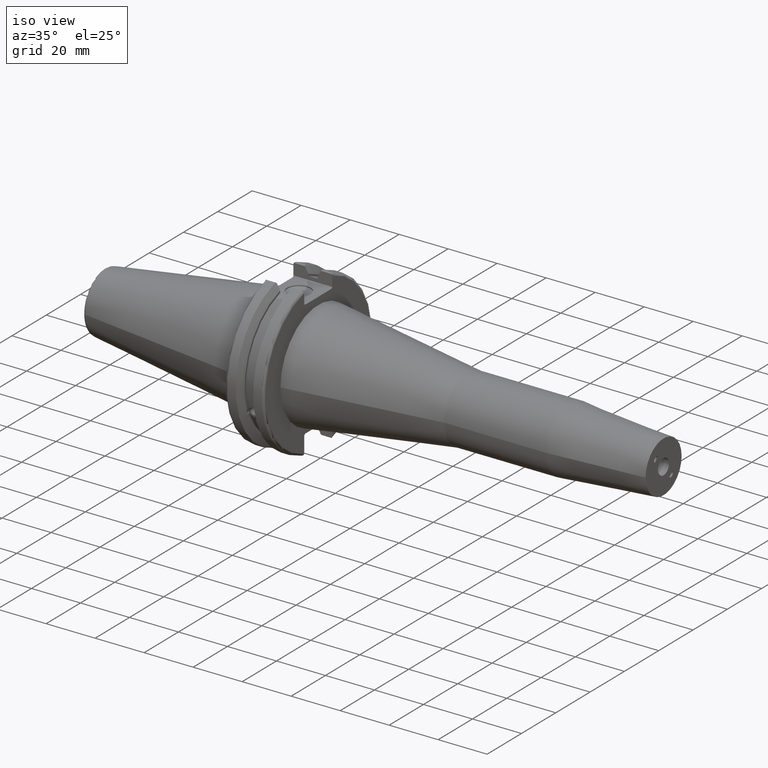
[diagram: clean part render]
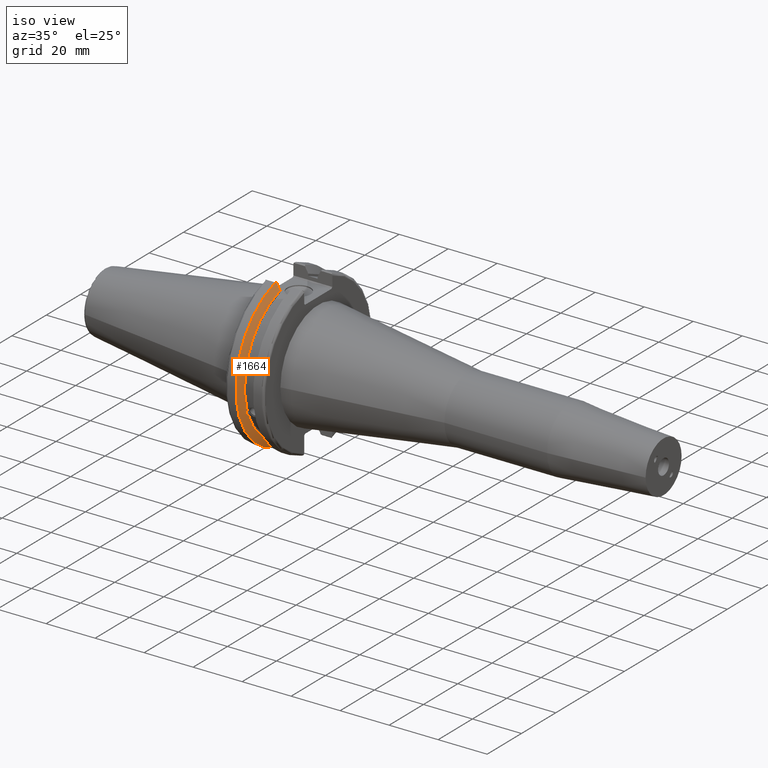
[diagram: same view with one face highlighted and labeled with its STEP entity id]
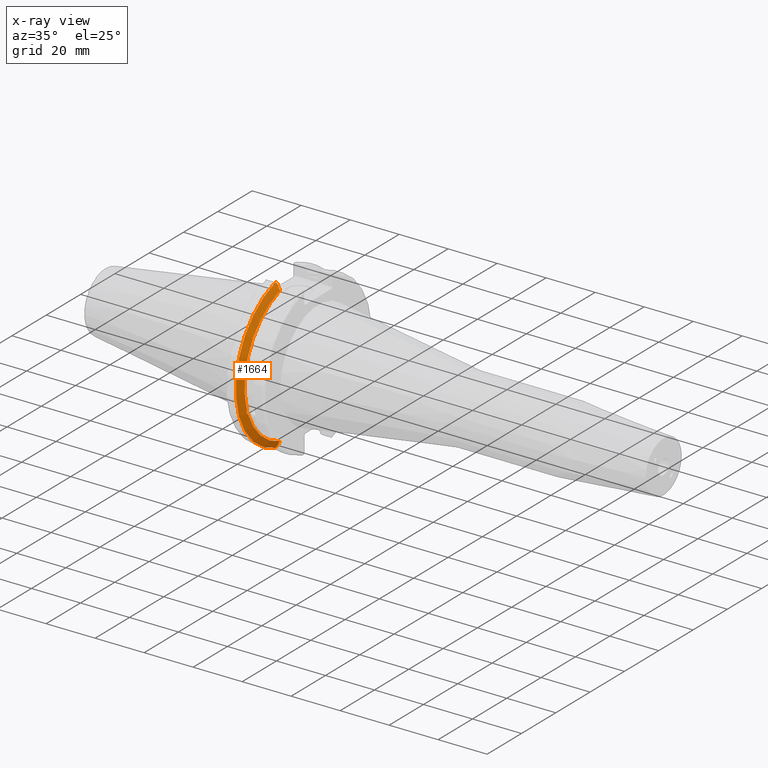
[diagram: x-ray of the same camera — body ghosted, the highlighted face saturated]
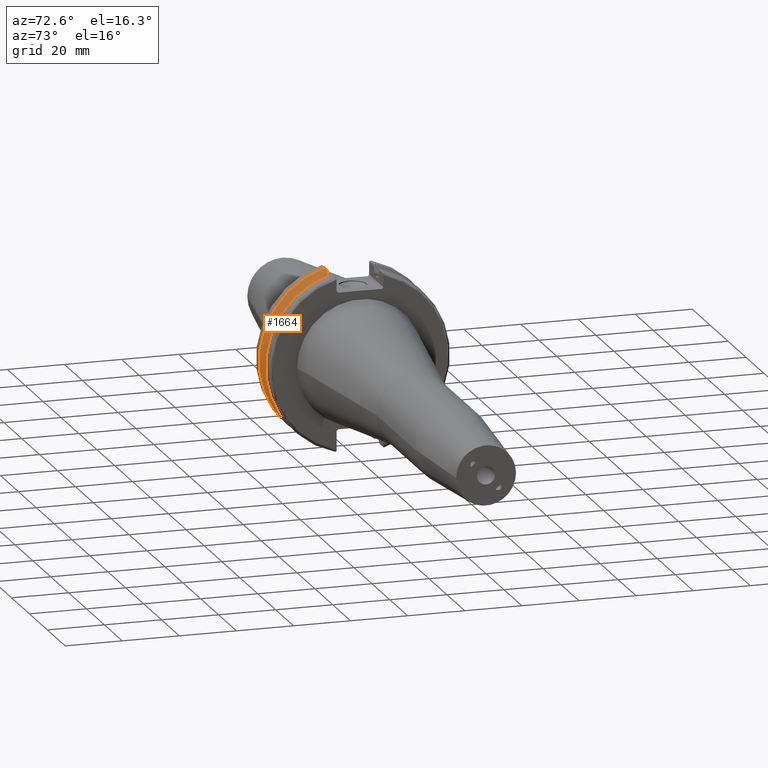
[diagram: same view with one face highlighted and labeled with its STEP entity id]
A machine part, iso view. The second image highlights one B-rep face of the part: STEP entity #1664.
The next image is the same camera in x-ray: the body ghosted, the highlighted face saturated — about 0% of this face is hidden behind the body in this view.
A second angle (auxiliary view) of the same face is appended — the face is thin or edge-on in the first view.
In plain terms, the highlighted conical surface has half-angle 60 deg.
Its self-contained STEP definition (entity closure, byte-faithful):
#31=(
BOUNDED_CURVE()
B_SPLINE_CURVE(2,(#2988,#2989,#2990),.UNSPECIFIED.,.F.,.F.)
B_SPLINE_CURVE_WITH_KNOTS((3,3),(0.,0.276549142796136),.UNSPECIFIED.)
CURVE()
GEOMETRIC_REPRESENTATION_ITEM()
RATIONAL_B_SPLINE_CURVE((1.,1.00095203903316,1.00031614444813))
REPRESENTATION_ITEM('')
);
#32=(
BOUNDED_CURVE()
B_SPLINE_CURVE(2,(#3000,#3001,#3002),.UNSPECIFIED.,.F.,.F.)
B_SPLINE_CURVE_WITH_KNOTS((3,3),(0.0550586467392022,0.33160778953585),
 .UNSPECIFIED.)
CURVE()
GEOMETRIC_REPRESENTATION_ITEM()
RATIONAL_B_SPLINE_CURVE((1.00031614445148,1.00095203904325,1.))
REPRESENTATION_ITEM('')
);
#33=(
BOUNDED_CURVE()
B_SPLINE_CURVE(2,(#3035,#3036,#3037),.UNSPECIFIED.,.F.,.F.)
B_SPLINE_CURVE_WITH_KNOTS((3,3),(0.,0.0639048713676282),.UNSPECIFIED.)
CURVE()
GEOMETRIC_REPRESENTATION_ITEM()
RATIONAL_B_SPLINE_CURVE((1.,1.00028444218284,1.00047644010574))
REPRESENTATION_ITEM('')
);
#34=(
BOUNDED_CURVE()
B_SPLINE_CURVE(2,(#3043,#3044,#3045),.UNSPECIFIED.,.F.,.F.)
B_SPLINE_CURVE_WITH_KNOTS((3,3),(0.329353533631205,0.393258405001025),
 .UNSPECIFIED.)
CURVE()
GEOMETRIC_REPRESENTATION_ITEM()
RATIONAL_B_SPLINE_CURVE((1.00047644010572,1.00028444218283,1.))
REPRESENTATION_ITEM('')
);
#61=B_SPLINE_CURVE_WITH_KNOTS('',3,(#2573,#2574,#2575,#2576,#2577,#2578,
#2579,#2580,#2581,#2582,#2583,#2584,#2585,#2586),.UNSPECIFIED.,.F.,.F.,
(4,2,2,2,2,2,4),(0.451995700189024,0.464547828547663,0.504528771685167,
0.544509714822672,0.584490657960178,0.624471601097683,0.63702372945632),
 .UNSPECIFIED.);
#155=CONICAL_SURFACE('',#1875,30.3546886482472,1.0471975511966);
#248=FACE_OUTER_BOUND('',#360,.T.);
#360=EDGE_LOOP('',(#1521,#1522,#1523,#1524,#1525,#1526,#1527,#1528));
#390=CIRCLE('',#1762,28.9593772964944);
#416=CIRCLE('',#1825,31.75);
#434=CIRCLE('',#1876,28.9593772964944);
#681=VERTEX_POINT('',#2570);
#682=VERTEX_POINT('',#2572);
#699=VERTEX_POINT('',#2665);
#773=VERTEX_POINT('',#2985);
#774=VERTEX_POINT('',#2987);
#777=VERTEX_POINT('',#2999);
#781=VERTEX_POINT('',#3033);
#782=VERTEX_POINT('',#3039);
#860=EDGE_CURVE('',#682,#681,#61,.T.);
#884=EDGE_CURVE('',#682,#699,#390,.T.);
#983=EDGE_CURVE('',#774,#773,#31,.T.);
#989=EDGE_CURVE('',#777,#699,#32,.T.);
#997=EDGE_CURVE('',#781,#773,#33,.T.);
#999=EDGE_CURVE('',#781,#782,#416,.T.);
#1000=EDGE_CURVE('',#777,#782,#34,.T.);
#1044=EDGE_CURVE('',#774,#681,#434,.T.);
#1521=ORIENTED_EDGE('',*,*,#860,.T.);
#1522=ORIENTED_EDGE('',*,*,#1044,.F.);
#1523=ORIENTED_EDGE('',*,*,#983,.T.);
#1524=ORIENTED_EDGE('',*,*,#997,.F.);
#1525=ORIENTED_EDGE('',*,*,#999,.T.);
#1526=ORIENTED_EDGE('',*,*,#1000,.F.);
#1527=ORIENTED_EDGE('',*,*,#989,.T.);
#1528=ORIENTED_EDGE('',*,*,#884,.F.);
#1664=ADVANCED_FACE('',(#248),#155,.T.);
#1762=AXIS2_PLACEMENT_3D('',#2666,#2055,#2056);
#1825=AXIS2_PLACEMENT_3D('',#3041,#2234,#2235);
#1875=AXIS2_PLACEMENT_3D('',#3161,#2355,#2356);
#1876=AXIS2_PLACEMENT_3D('',#3162,#2357,#2358);
#2055=DIRECTION('center_axis',(1.,0.,0.));
#2056=DIRECTION('ref_axis',(0.,0.,-1.));
#2234=DIRECTION('center_axis',(1.,0.,0.));
#2235=DIRECTION('ref_axis',(0.,0.,-1.));
#2355=DIRECTION('center_axis',(-1.,0.,0.));
#2356=DIRECTION('ref_axis',(0.,-1.,-1.22464679914735E-16));
#2357=DIRECTION('center_axis',(1.,0.,0.));
#2358=DIRECTION('ref_axis',(0.,0.,-1.));
#2570=CARTESIAN_POINT('',(9.2191,-27.4956274489925,-9.09043478536245));
#2572=CARTESIAN_POINT('',(9.2191,-26.9060914640648,-10.7101715919071));
#2573=CARTESIAN_POINT('Ctrl Pts',(9.2191,-26.9060914640648,-10.7101715919071));
#2574=CARTESIAN_POINT('Ctrl Pts',(9.20497959280038,-26.9406927482839,-10.6893765730703));
#2575=CARTESIAN_POINT('Ctrl Pts',(9.19150701821433,-26.9744191989197,-10.6676007180673));
#2576=CARTESIAN_POINT('Ctrl Pts',(9.13811855884095,-27.1113422433189,-10.5723885976054));
#2577=CARTESIAN_POINT('Ctrl Pts',(9.09998029158246,-27.2180531796526,-10.4801333026531));
#2578=CARTESIAN_POINT('Ctrl Pts',(9.04778935539424,-27.3968610665578,-10.2639559818059));
#2579=CARTESIAN_POINT('Ctrl Pts',(9.0341,-27.4684373304961,-10.139516340139));
#2580=CARTESIAN_POINT('Ctrl Pts',(9.0341,-27.559599249844,-9.8890510252165));
#2581=CARTESIAN_POINT('Ctrl Pts',(9.04778935539424,-27.5847569104122,-9.74771639360671));
#2582=CARTESIAN_POINT('Ctrl Pts',(9.09998029158246,-27.5867382255984,-9.46717946402648));
#2583=CARTESIAN_POINT('Ctrl Pts',(9.13811855884095,-27.5642934663232,-9.32791534028655));
#2584=CARTESIAN_POINT('Ctrl Pts',(9.19150701821434,-27.5206055003512,-9.16696618806877));
#2585=CARTESIAN_POINT('Ctrl Pts',(9.20497959280038,-27.5087667900418,-9.12860597076217));
#2586=CARTESIAN_POINT('Ctrl Pts',(9.2191,-27.4956274489925,-9.09043478536245));
#2665=CARTESIAN_POINT('',(9.2191,-8.19,-27.7771386827498));
#2666=CARTESIAN_POINT('Origin',(9.2191,0.,0.));
#2985=CARTESIAN_POINT('',(7.88668530351257,-8.19,30.1755016258903));
#2987=CARTESIAN_POINT('',(9.2191,-8.19,27.7771386827498));
#2988=CARTESIAN_POINT('Ctrl Pts',(9.2191,-8.19,27.7771386827498));
#2989=CARTESIAN_POINT('Ctrl Pts',(8.58046356152393,-8.19,28.9303689539705));
#2990=CARTESIAN_POINT('Ctrl Pts',(7.88668530351257,-8.19,30.1755016258903));
#2999=CARTESIAN_POINT('',(7.88668530351256,-8.19,-30.1755016258903));
#3000=CARTESIAN_POINT('Ctrl Pts',(7.88668530351256,-8.19,-30.1755016258903));
#3001=CARTESIAN_POINT('Ctrl Pts',(8.5804635615235,-8.19,-28.9303689539712));
#3002=CARTESIAN_POINT('Ctrl Pts',(9.2191,-8.19,-27.7771386827498));
#3033=CARTESIAN_POINT('',(7.60793323092436,-8.67204822802685,30.5427254764662));
#3035=CARTESIAN_POINT('Ctrl Pts',(7.60793323092436,-8.67204822802686,30.5427254764662));
#3036=CARTESIAN_POINT('Ctrl Pts',(7.74899148121626,-8.42917748262648,30.357706789263));
#3037=CARTESIAN_POINT('Ctrl Pts',(7.88668530351257,-8.19,30.1755016258903));
#3039=CARTESIAN_POINT('',(7.60793323092436,-8.67204822802685,-30.5427254764662));
#3041=CARTESIAN_POINT('Origin',(7.60793323092436,0.,0.));
#3043=CARTESIAN_POINT('Ctrl Pts',(7.88668530351256,-8.19,-30.1755016258903));
#3044=CARTESIAN_POINT('Ctrl Pts',(7.74899148121159,-8.42917748263467,-30.3577067892692));
#3045=CARTESIAN_POINT('Ctrl Pts',(7.60793323092435,-8.67204822802687,-30.5427254764662));
#3161=CARTESIAN_POINT('Origin',(8.41351661546218,0.,0.));
#3162=CARTESIAN_POINT('Origin',(9.2191,0.,0.));